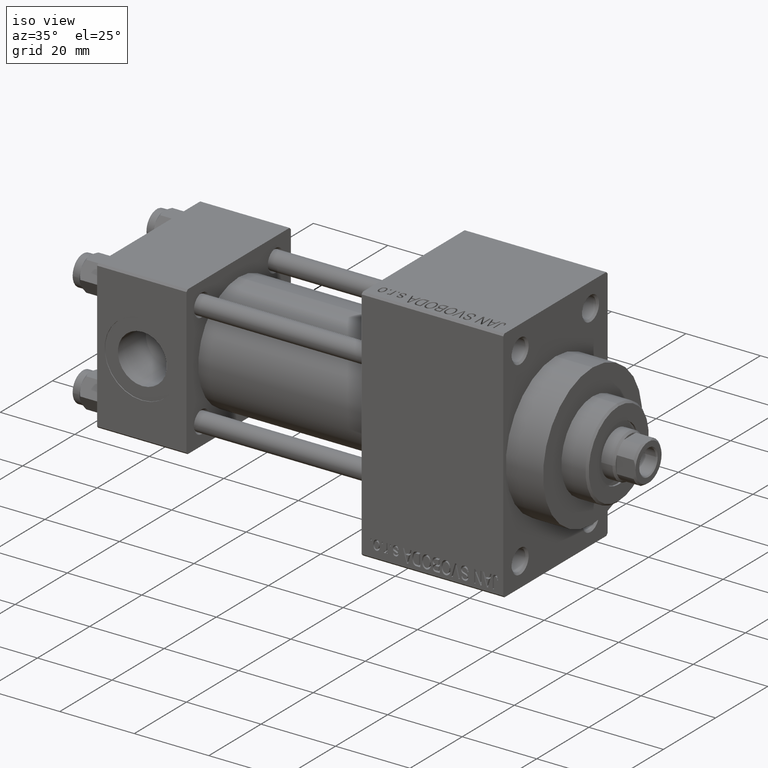
[diagram: clean part render]
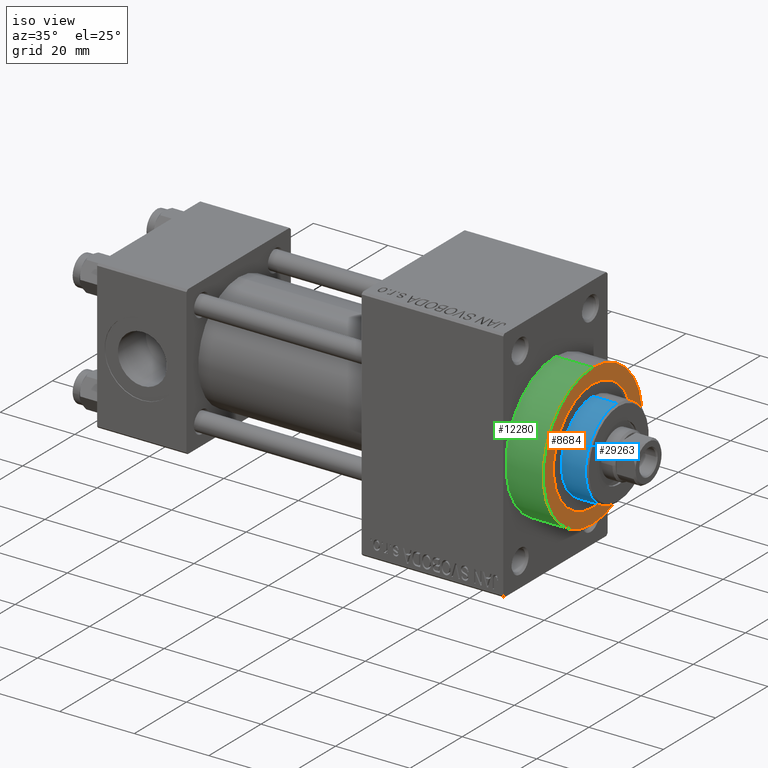
[diagram: same view with three faces highlighted in distinct colors, each labeled with its STEP entity id]
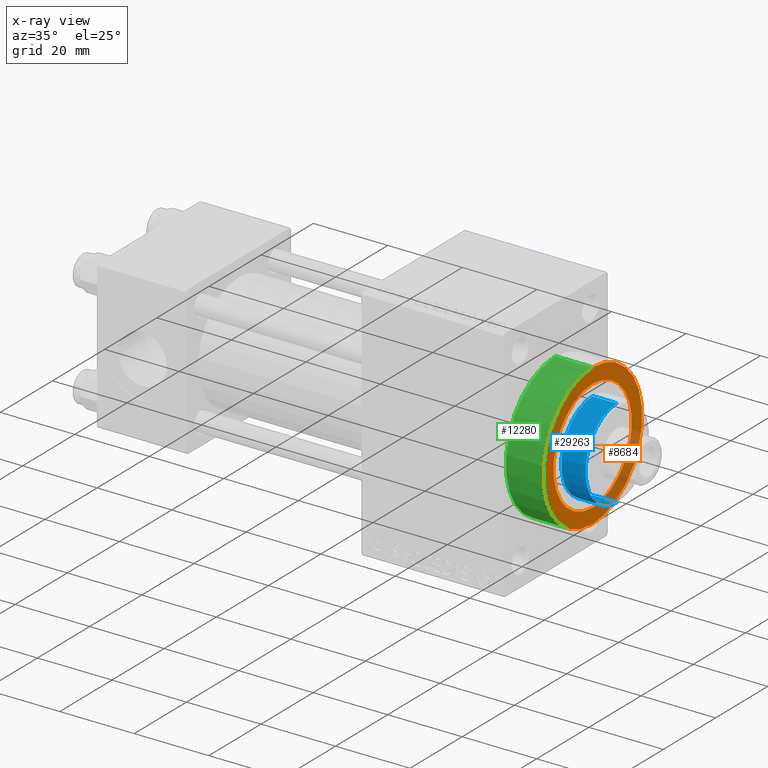
[diagram: x-ray of the same camera — body ghosted, the three highlighted faces saturated]
A machine part, iso view with three faces highlighted in distinct colors.
The next image is the same camera in x-ray (body ghosted, the three faces saturated) — at least one of them is partly hidden behind the body in this view.
Their STEP definitions:

[orange] entity #8684 — the highlighted planar face has unit normal (1, 0, 0).
#518 = AXIS2_PLACEMENT_3D ( 'NONE', #35463, #17375, #43535 ) ;
#2552 = AXIS2_PLACEMENT_3D ( 'NONE', #8141, #37185, #4575 ) ;
#4196 = VERTEX_POINT ( 'NONE', #14191 ) ;
#4354 = EDGE_LOOP ( 'NONE', ( #10966, #36297 ) ) ;
#4385 = CARTESIAN_POINT ( 'NONE',  ( 119.0000000000000142, 0.000000000000000000, -15.00000000000000000 ) ) ;
#4575 = DIRECTION ( 'NONE',  ( 0.000000000000000000, 0.000000000000000000, -1.000000000000000000 ) ) ;
#4956 = DIRECTION ( 'NONE',  ( 0.000000000000000000, 0.000000000000000000, -1.000000000000000000 ) ) ;
#6438 = CARTESIAN_POINT ( 'NONE',  ( 119.0000000000000142, 0.000000000000000000, 0.000000000000000000 ) ) ;
#7736 = VERTEX_POINT ( 'NONE', #25766 ) ;
#8141 = CARTESIAN_POINT ( 'NONE',  ( 119.0000000000000142, 0.000000000000000000, 0.000000000000000000 ) ) ;
#8684 = ADVANCED_FACE ( 'NONE', ( #42654, #20510 ), #35273, .T. ) ;
#10480 = DIRECTION ( 'NONE',  ( 1.000000000000000000, 0.000000000000000000, 0.000000000000000000 ) ) ;
#10966 = ORIENTED_EDGE ( 'NONE', *, *, #41787, .T. ) ;
#11620 = AXIS2_PLACEMENT_3D ( 'NONE', #45409, #27317, #4956 ) ;
#11991 = AXIS2_PLACEMENT_3D ( 'NONE', #6438, #10480, #39516 ) ;
#13147 = ORIENTED_EDGE ( 'NONE', *, *, #25915, .F. ) ;
#14191 = CARTESIAN_POINT ( 'NONE',  ( 119.0000000000000142, 1.836970198721029589E-15, 15.00000000000000000 ) ) ;
#17184 = CARTESIAN_POINT ( 'NONE',  ( 119.0000000000000142, 0.000000000000000000, 0.000000000000000000 ) ) ;
#17281 = CIRCLE ( 'NONE', #11991, 19.00000000000000000 ) ;
#17375 = DIRECTION ( 'NONE',  ( 1.000000000000000000, 0.000000000000000000, 0.000000000000000000 ) ) ;
#20000 = CIRCLE ( 'NONE', #2552, 15.00000000000000000 ) ;
#20510 = FACE_OUTER_BOUND ( 'NONE', #4354, .T. ) ;
#21032 = CIRCLE ( 'NONE', #518, 19.00000000000000000 ) ;
#23615 = DIRECTION ( 'NONE',  ( 1.000000000000000000, 0.000000000000000000, 0.000000000000000000 ) ) ;
#25766 = CARTESIAN_POINT ( 'NONE',  ( 119.0000000000000142, 0.000000000000000000, 19.00000000000000000 ) ) ;
#25915 = EDGE_CURVE ( 'NONE', #4196, #30605, #43475, .T. ) ;
#27317 = DIRECTION ( 'NONE',  ( 1.000000000000000000, 0.000000000000000000, 0.000000000000000000 ) ) ;
#27661 = DIRECTION ( 'NONE',  ( 0.000000000000000000, 0.000000000000000000, -1.000000000000000000 ) ) ;
#30070 = CARTESIAN_POINT ( 'NONE',  ( 119.0000000000000142, 2.326828918379970970E-15, -19.00000000000000000 ) ) ;
#30605 = VERTEX_POINT ( 'NONE', #4385 ) ;
#32104 = EDGE_CURVE ( 'NONE', #30605, #4196, #20000, .T. ) ;
#34878 = EDGE_LOOP ( 'NONE', ( #38560, #13147 ) ) ;
#35273 = PLANE ( 'NONE',  #45566 ) ;
#35463 = CARTESIAN_POINT ( 'NONE',  ( 119.0000000000000142, 0.000000000000000000, 0.000000000000000000 ) ) ;
#36297 = ORIENTED_EDGE ( 'NONE', *, *, #44379, .T. ) ;
#37185 = DIRECTION ( 'NONE',  ( 1.000000000000000000, 0.000000000000000000, 0.000000000000000000 ) ) ;
#38560 = ORIENTED_EDGE ( 'NONE', *, *, #32104, .F. ) ;
#39516 = DIRECTION ( 'NONE',  ( 0.000000000000000000, 0.000000000000000000, -1.000000000000000000 ) ) ;
#40273 = VERTEX_POINT ( 'NONE', #30070 ) ;
#41787 = EDGE_CURVE ( 'NONE', #7736, #40273, #17281, .T. ) ;
#42654 = FACE_BOUND ( 'NONE', #34878, .T. ) ;
#43475 = CIRCLE ( 'NONE', #11620, 15.00000000000000000 ) ;
#43535 = DIRECTION ( 'NONE',  ( 0.000000000000000000, 0.000000000000000000, -1.000000000000000000 ) ) ;
#44379 = EDGE_CURVE ( 'NONE', #40273, #7736, #21032, .T. ) ;
#45409 = CARTESIAN_POINT ( 'NONE',  ( 119.0000000000000142, 0.000000000000000000, 0.000000000000000000 ) ) ;
#45566 = AXIS2_PLACEMENT_3D ( 'NONE', #17184, #23615, #27661 ) ;

[blue] entity #29263 — the highlighted cylindrical surface (partial cylindrical patch) has radius 12 mm, axis along (-1, 0, 0).
#2154 = DIRECTION ( 'NONE',  ( 0.000000000000000000, 0.000000000000000000, -1.000000000000000000 ) ) ;
#2666 = CARTESIAN_POINT ( 'NONE',  ( 12.00000000000000178, 1.469576158976824144E-15, 43.25999999999999801 ) ) ;
#4491 = CARTESIAN_POINT ( 'NONE',  ( -12.00000000000000178, 0.000000000000000000, 43.25999999999999801 ) ) ;
#7858 = ORIENTED_EDGE ( 'NONE', *, *, #20069, .T. ) ;
#7903 = LINE ( 'NONE', #14809, #19381 ) ;
#8697 = ORIENTED_EDGE ( 'NONE', *, *, #16148, .T. ) ;
#8857 = ORIENTED_EDGE ( 'NONE', *, *, #36612, .F. ) ;
#12602 = DIRECTION ( 'NONE',  ( -0.000000000000000000, -0.000000000000000000, -1.000000000000000000 ) ) ;
#13977 = CARTESIAN_POINT ( 'NONE',  ( 0.000000000000000000, 0.000000000000000000, 50.25999999999999801 ) ) ;
#14203 = CYLINDRICAL_SURFACE ( 'NONE', #19282, 12.00000000000000178 ) ;
#14809 = CARTESIAN_POINT ( 'NONE',  ( -12.00000000000000178, 0.000000000000000000, 50.25999999999999801 ) ) ;
#15002 = VERTEX_POINT ( 'NONE', #2666 ) ;
#15338 = DIRECTION ( 'NONE',  ( 1.000000000000000000, 0.000000000000000000, 0.000000000000000000 ) ) ;
#15379 = AXIS2_PLACEMENT_3D ( 'NONE', #37868, #2154, #23083 ) ;
#16148 = EDGE_CURVE ( 'NONE', #38440, #37608, #20703, .T. ) ;
#19282 = AXIS2_PLACEMENT_3D ( 'NONE', #13977, #32053, #43226 ) ;
#19381 = VECTOR ( 'NONE', #44543, 1000.000000000000000 ) ;
#20069 = EDGE_CURVE ( 'NONE', #15002, #41065, #32686, .T. ) ;
#20703 = CIRCLE ( 'NONE', #15379, 12.00000000000000178 ) ;
#22588 = EDGE_LOOP ( 'NONE', ( #8697, #30341, #7858, #8857 ) ) ;
#23083 = DIRECTION ( 'NONE',  ( 1.000000000000000000, 0.000000000000000000, 0.000000000000000000 ) ) ;
#29263 = ADVANCED_FACE ( 'NONE', ( #46802 ), #14203, .T. ) ;
#29328 = CARTESIAN_POINT ( 'NONE',  ( -12.00000000000000178, 0.000000000000000000, 49.76000000000000512 ) ) ;
#30341 = ORIENTED_EDGE ( 'NONE', *, *, #35740, .T. ) ;
#32053 = DIRECTION ( 'NONE',  ( -0.000000000000000000, -0.000000000000000000, -1.000000000000000000 ) ) ;
#32686 = CIRCLE ( 'NONE', #38789, 12.00000000000000178 ) ;
#33771 = LINE ( 'NONE', #34249, #46719 ) ;
#33836 = CARTESIAN_POINT ( 'NONE',  ( 12.00000000000000178, 1.469576158976824144E-15, 49.76000000000000512 ) ) ;
#34249 = CARTESIAN_POINT ( 'NONE',  ( 12.00000000000000178, 1.469576158976824144E-15, 50.25999999999999801 ) ) ;
#35740 = EDGE_CURVE ( 'NONE', #37608, #15002, #33771, .T. ) ;
#36612 = EDGE_CURVE ( 'NONE', #38440, #41065, #7903, .T. ) ;
#37475 = CARTESIAN_POINT ( 'NONE',  ( 0.000000000000000000, 0.000000000000000000, 43.25999999999999801 ) ) ;
#37608 = VERTEX_POINT ( 'NONE', #33836 ) ;
#37868 = CARTESIAN_POINT ( 'NONE',  ( 0.000000000000000000, 0.000000000000000000, 49.76000000000000512 ) ) ;
#38440 = VERTEX_POINT ( 'NONE', #29328 ) ;
#38789 = AXIS2_PLACEMENT_3D ( 'NONE', #37475, #45076, #15338 ) ;
#41065 = VERTEX_POINT ( 'NONE', #4491 ) ;
#43226 = DIRECTION ( 'NONE',  ( -1.000000000000000000, 0.000000000000000000, 0.000000000000000000 ) ) ;
#44543 = DIRECTION ( 'NONE',  ( -0.000000000000000000, -0.000000000000000000, -1.000000000000000000 ) ) ;
#45076 = DIRECTION ( 'NONE',  ( 0.000000000000000000, 0.000000000000000000, 1.000000000000000000 ) ) ;
#46719 = VECTOR ( 'NONE', #12602, 1000.000000000000000 ) ;
#46802 = FACE_OUTER_BOUND ( 'NONE', #22588, .T. ) ;

[green] entity #12280 — the highlighted cylindrical surface (partial cylindrical patch) has radius 19 mm, axis along (-1, -0, -0).
#3686 = CARTESIAN_POINT ( 'NONE',  ( 109.0000000000000142, 0.000000000000000000, 19.00000000000000000 ) ) ;
#4944 = FACE_OUTER_BOUND ( 'NONE', #38400, .T. ) ;
#6438 = CARTESIAN_POINT ( 'NONE',  ( 119.0000000000000142, 0.000000000000000000, 0.000000000000000000 ) ) ;
#7461 = AXIS2_PLACEMENT_3D ( 'NONE', #34355, #45785, #27677 ) ;
#7736 = VERTEX_POINT ( 'NONE', #25766 ) ;
#7800 = ORIENTED_EDGE ( 'NONE', *, *, #11135, .F. ) ;
#8749 = CYLINDRICAL_SURFACE ( 'NONE', #42602, 19.00000000000000000 ) ;
#10480 = DIRECTION ( 'NONE',  ( 1.000000000000000000, 0.000000000000000000, 0.000000000000000000 ) ) ;
#11135 = EDGE_CURVE ( 'NONE', #40273, #30596, #43244, .T. ) ;
#11991 = AXIS2_PLACEMENT_3D ( 'NONE', #6438, #10480, #39516 ) ;
#12280 = ADVANCED_FACE ( 'NONE', ( #4944 ), #8749, .T. ) ;
#12315 = ORIENTED_EDGE ( 'NONE', *, *, #43968, .T. ) ;
#13159 = EDGE_CURVE ( 'NONE', #7736, #17704, #27311, .T. ) ;
#13284 = CARTESIAN_POINT ( 'NONE',  ( 119.0000000000000142, 0.000000000000000000, 19.00000000000000000 ) ) ;
#17281 = CIRCLE ( 'NONE', #11991, 19.00000000000000000 ) ;
#17704 = VERTEX_POINT ( 'NONE', #3686 ) ;
#19689 = DIRECTION ( 'NONE',  ( 0.000000000000000000, 0.000000000000000000, 1.000000000000000000 ) ) ;
#21335 = DIRECTION ( 'NONE',  ( -1.000000000000000000, -0.000000000000000000, -0.000000000000000000 ) ) ;
#22452 = CARTESIAN_POINT ( 'NONE',  ( 109.0000000000000142, 2.326828918379970970E-15, -19.00000000000000000 ) ) ;
#25578 = CIRCLE ( 'NONE', #7461, 19.00000000000000000 ) ;
#25766 = CARTESIAN_POINT ( 'NONE',  ( 119.0000000000000142, 0.000000000000000000, 19.00000000000000000 ) ) ;
#27311 = LINE ( 'NONE', #13284, #46455 ) ;
#27677 = DIRECTION ( 'NONE',  ( 0.000000000000000000, 0.000000000000000000, -1.000000000000000000 ) ) ;
#30070 = CARTESIAN_POINT ( 'NONE',  ( 119.0000000000000142, 2.326828918379970970E-15, -19.00000000000000000 ) ) ;
#30596 = VERTEX_POINT ( 'NONE', #22452 ) ;
#32825 = ORIENTED_EDGE ( 'NONE', *, *, #41787, .F. ) ;
#34215 = DIRECTION ( 'NONE',  ( -1.000000000000000000, -0.000000000000000000, -0.000000000000000000 ) ) ;
#34222 = DIRECTION ( 'NONE',  ( -1.000000000000000000, -0.000000000000000000, -0.000000000000000000 ) ) ;
#34355 = CARTESIAN_POINT ( 'NONE',  ( 109.0000000000000142, 0.000000000000000000, 0.000000000000000000 ) ) ;
#34388 = ORIENTED_EDGE ( 'NONE', *, *, #13159, .T. ) ;
#38400 = EDGE_LOOP ( 'NONE', ( #7800, #32825, #34388, #12315 ) ) ;
#39516 = DIRECTION ( 'NONE',  ( 0.000000000000000000, 0.000000000000000000, -1.000000000000000000 ) ) ;
#39545 = VECTOR ( 'NONE', #21335, 1000.000000000000000 ) ;
#39913 = CARTESIAN_POINT ( 'NONE',  ( 119.0000000000000142, 2.326828918379970970E-15, -19.00000000000000000 ) ) ;
#40273 = VERTEX_POINT ( 'NONE', #30070 ) ;
#41353 = CARTESIAN_POINT ( 'NONE',  ( 119.0000000000000142, 0.000000000000000000, 0.000000000000000000 ) ) ;
#41787 = EDGE_CURVE ( 'NONE', #7736, #40273, #17281, .T. ) ;
#42602 = AXIS2_PLACEMENT_3D ( 'NONE', #41353, #34215, #19689 ) ;
#43244 = LINE ( 'NONE', #39913, #39545 ) ;
#43968 = EDGE_CURVE ( 'NONE', #17704, #30596, #25578, .T. ) ;
#45785 = DIRECTION ( 'NONE',  ( 1.000000000000000000, 0.000000000000000000, 0.000000000000000000 ) ) ;
#46455 = VECTOR ( 'NONE', #34222, 1000.000000000000000 ) ;